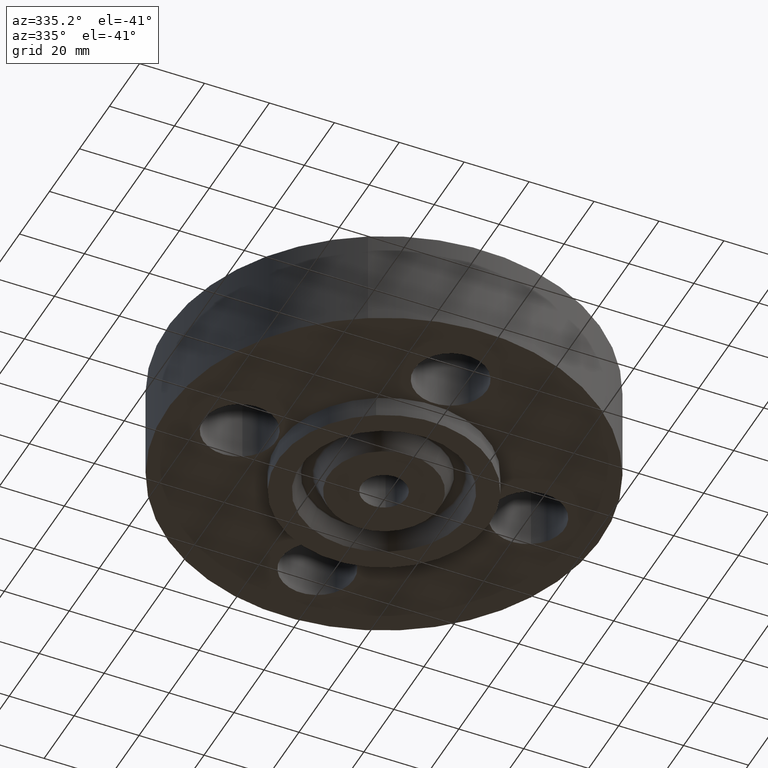
[diagram: clean part render]
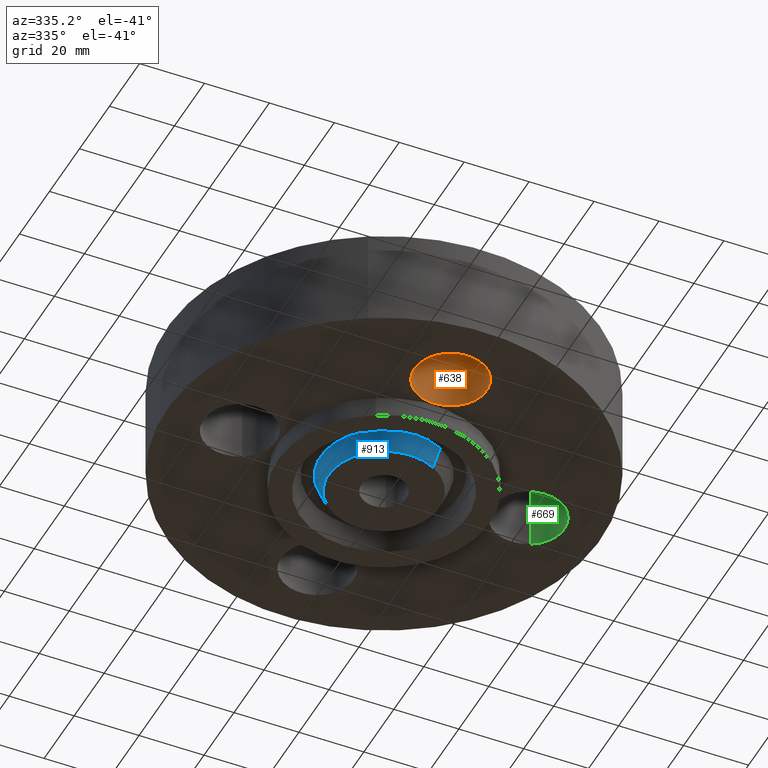
[diagram: same view with three faces highlighted in distinct colors, each labeled with its STEP entity id]
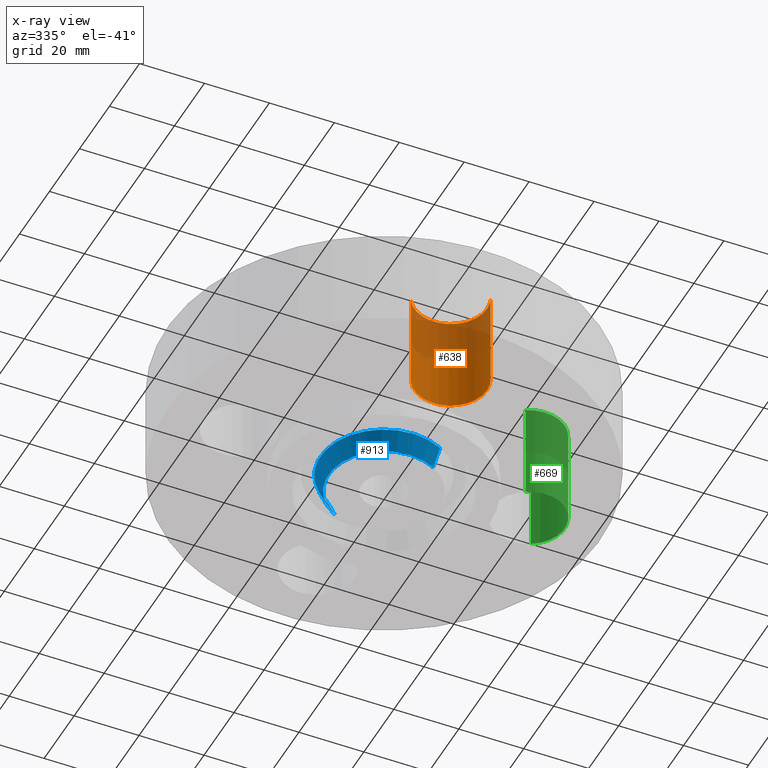
[diagram: x-ray of the same camera — body ghosted, the three highlighted faces saturated]
A machine part, auxiliary view with three faces highlighted in distinct colors.
The next image is the same camera in x-ray (body ghosted, the three faces saturated) — at least one of them is partly hidden behind the body in this view.
Their STEP definitions:

[orange] entity #638 — the highlighted cylindrical surface (partial cylindrical patch) has radius 11.176 mm, axis along (-0, 0, -1).
#527=AXIS2_PLACEMENT_3D('Circle Axis2P3D',#525,#526,$) ;
#599=AXIS2_PLACEMENT_3D('Cylinder Axis2P3D',#596,#597,#598) ;
#629=AXIS2_PLACEMENT_3D('Circle Axis2P3D',#627,#628,$) ;
#520=CARTESIAN_POINT('Vertex',(0.386136327233,-1.96094723699,0.)) ;
#522=CARTESIAN_POINT('Vertex',(-0.386136327233,-1.53905276302,0.)) ;
#525=CARTESIAN_POINT('Axis2P3D Location',(2.44773580232E-016,-1.75000000001,0.)) ;
#596=CARTESIAN_POINT('Axis2P3D Location',(2.14313189852E-016,-1.75000000001,1.18606299213)) ;
#601=CARTESIAN_POINT('Line Origine',(0.386136327233,-1.96094723699,0.595000000002)) ;
#605=CARTESIAN_POINT('Vertex',(0.386136327233,-1.96094723699,1.19)) ;
#608=CARTESIAN_POINT('Line Origine',(-0.386136327233,-1.53905276302,0.595000000002)) ;
#612=CARTESIAN_POINT('Vertex',(-0.386136327233,-1.53905276302,1.19)) ;
#627=CARTESIAN_POINT('Axis2P3D Location',(2.14313189852E-016,-1.75000000001,1.19)) ;
#526=DIRECTION('Axis2P3D Direction',(0.,0.,-0.0393700787402)) ;
#597=DIRECTION('Axis2P3D Direction',(-0.,0.,-0.0393700787402)) ;
#598=DIRECTION('Axis2P3D XDirection',(-0.0345504945626,0.0188750212049,0.)) ;
#602=DIRECTION('Vector Direction',(0.,0.,-0.0393700787402)) ;
#609=DIRECTION('Vector Direction',(0.,0.,-0.0393700787402)) ;
#628=DIRECTION('Axis2P3D Direction',(-0.,0.,-0.0393700787402)) ;
#603=VECTOR('Line Direction',#602,0.0393700787402) ;
#610=VECTOR('Line Direction',#609,0.0393700787402) ;
#633=ORIENTED_EDGE('',*,*,#614,.F.) ;
#634=ORIENTED_EDGE('',*,*,#529,.T.) ;
#635=ORIENTED_EDGE('',*,*,#607,.T.) ;
#636=ORIENTED_EDGE('',*,*,#631,.F.) ;
#638=ADVANCED_FACE('PartBody',(#637),#600,.F.) ;
#528=CIRCLE('generated circle',#527,0.440000000002) ;
#630=CIRCLE('generated circle',#629,0.440000000002) ;
#600=CYLINDRICAL_SURFACE('generated cylinder',#599,0.440000000002) ;
#529=EDGE_CURVE('',#523,#521,#528,.T.) ;
#607=EDGE_CURVE('',#521,#606,#604,.F.) ;
#614=EDGE_CURVE('',#523,#613,#611,.F.) ;
#631=EDGE_CURVE('',#613,#606,#630,.T.) ;
#632=EDGE_LOOP('',(#633,#634,#635,#636)) ;
#637=FACE_OUTER_BOUND('',#632,.T.) ;
#604=LINE('Line',#601,#603) ;
#611=LINE('Line',#608,#610) ;
#521=VERTEX_POINT('',#520) ;
#523=VERTEX_POINT('',#522) ;
#606=VERTEX_POINT('',#605) ;
#613=VERTEX_POINT('',#612) ;

[blue] entity #913 — the highlighted conical surface has half-angle 23 deg.
#721=AXIS2_PLACEMENT_3D('Circle Axis2P3D',#719,#720,$) ;
#875=AXIS2_PLACEMENT_3D('Circle Axis2P3D',#873,#874,$) ;
#888=AXIS2_PLACEMENT_3D('Cone Axis2P3D',#885,#886,#887) ;
#714=CARTESIAN_POINT('Vertex',(-0.322173961943,0.589735481593,-0.250000000001)) ;
#716=CARTESIAN_POINT('Vertex',(0.322173961943,-0.589735481593,-0.250000000001)) ;
#719=CARTESIAN_POINT('Axis2P3D Location',(1.39870617276E-016,-3.49676543189E-017,-0.250000000001)) ;
#851=CARTESIAN_POINT('Vertex',(0.369206329292,-0.675827652547,-0.0188873350169)) ;
#858=CARTESIAN_POINT('Vertex',(-0.369206329292,0.675827652547,-0.0188873350169)) ;
#873=CARTESIAN_POINT('Axis2P3D Location',(0.,0.,-0.0188873350169)) ;
#885=CARTESIAN_POINT('Axis2P3D Location',(0.,0.,-0.310000000001)) ;
#890=CARTESIAN_POINT('Line Origine',(-0.345690145618,0.63278156707,-0.134443667509)) ;
#895=CARTESIAN_POINT('Line Origine',(0.345690145618,-0.63278156707,-0.134443667509)) ;
#720=DIRECTION('Axis2P3D Direction',(0.,0.,-0.0393700787402)) ;
#874=DIRECTION('Axis2P3D Direction',(0.,0.,0.0393700787402)) ;
#886=DIRECTION('Axis2P3D Direction',(0.,0.,0.0393700787402)) ;
#887=DIRECTION('Axis2P3D XDirection',(-0.0188750212049,0.0345504945626,0.)) ;
#891=DIRECTION('Vector Direction',(-0.00737505833565,0.0134999537303,0.0362403485611)) ;
#896=DIRECTION('Vector Direction',(0.00737505833565,-0.0134999537303,0.0362403485611)) ;
#892=VECTOR('Line Direction',#891,0.0393700787402) ;
#897=VECTOR('Line Direction',#896,0.0393700787402) ;
#908=ORIENTED_EDGE('',*,*,#899,.F.) ;
#909=ORIENTED_EDGE('',*,*,#877,.F.) ;
#910=ORIENTED_EDGE('',*,*,#894,.T.) ;
#911=ORIENTED_EDGE('',*,*,#723,.F.) ;
#913=ADVANCED_FACE('PartBody',(#912),#889,.T.) ;
#722=CIRCLE('generated circle',#721,0.672000000003) ;
#876=CIRCLE('generated circle',#875,0.770101505996) ;
#889=CONICAL_SURFACE('Cone',#888,0.64653151103,0.401425727959) ;
#723=EDGE_CURVE('',#717,#715,#722,.T.) ;
#877=EDGE_CURVE('',#859,#852,#876,.T.) ;
#894=EDGE_CURVE('',#859,#715,#893,.F.) ;
#899=EDGE_CURVE('',#852,#717,#898,.F.) ;
#907=EDGE_LOOP('',(#908,#909,#910,#911)) ;
#912=FACE_OUTER_BOUND('',#907,.T.) ;
#893=LINE('Line',#890,#892) ;
#898=LINE('Line',#895,#897) ;
#715=VERTEX_POINT('',#714) ;
#717=VERTEX_POINT('',#716) ;
#852=VERTEX_POINT('',#851) ;
#859=VERTEX_POINT('',#858) ;

[green] entity #669 — the highlighted cylindrical surface (partial cylindrical patch) has radius 11.176 mm, axis along (0, -0, -1).
#500=AXIS2_PLACEMENT_3D('Circle Axis2P3D',#498,#499,$) ;
#642=AXIS2_PLACEMENT_3D('Cylinder Axis2P3D',#639,#640,#641) ;
#660=AXIS2_PLACEMENT_3D('Circle Axis2P3D',#658,#659,$) ;
#498=CARTESIAN_POINT('Axis2P3D Location',(1.75000000001,-2.79741234551E-016,0.)) ;
#502=CARTESIAN_POINT('Vertex',(1.96094723699,0.386136327233,0.)) ;
#504=CARTESIAN_POINT('Vertex',(1.53905276302,-0.386136327233,0.)) ;
#639=CARTESIAN_POINT('Axis2P3D Location',(1.75000000001,-1.72584639625E-016,1.18606299213)) ;
#644=CARTESIAN_POINT('Line Origine',(1.96094723699,0.386136327233,0.595000000002)) ;
#648=CARTESIAN_POINT('Vertex',(1.96094723699,0.386136327233,1.19)) ;
#651=CARTESIAN_POINT('Line Origine',(1.53905276302,-0.386136327233,0.595000000002)) ;
#655=CARTESIAN_POINT('Vertex',(1.53905276302,-0.386136327233,1.19)) ;
#658=CARTESIAN_POINT('Axis2P3D Location',(1.75000000001,-1.72584639625E-016,1.19)) ;
#499=DIRECTION('Axis2P3D Direction',(0.,0.,-0.0393700787402)) ;
#640=DIRECTION('Axis2P3D Direction',(0.,-0.,-0.0393700787402)) ;
#641=DIRECTION('Axis2P3D XDirection',(-0.0188750212049,-0.0345504945626,0.)) ;
#645=DIRECTION('Vector Direction',(0.,0.,-0.0393700787402)) ;
#652=DIRECTION('Vector Direction',(0.,0.,-0.0393700787402)) ;
#659=DIRECTION('Axis2P3D Direction',(0.,-0.,-0.0393700787402)) ;
#646=VECTOR('Line Direction',#645,0.0393700787402) ;
#653=VECTOR('Line Direction',#652,0.0393700787402) ;
#664=ORIENTED_EDGE('',*,*,#650,.F.) ;
#665=ORIENTED_EDGE('',*,*,#506,.T.) ;
#666=ORIENTED_EDGE('',*,*,#657,.T.) ;
#667=ORIENTED_EDGE('',*,*,#662,.F.) ;
#669=ADVANCED_FACE('PartBody',(#668),#643,.F.) ;
#501=CIRCLE('generated circle',#500,0.440000000002) ;
#661=CIRCLE('generated circle',#660,0.440000000002) ;
#643=CYLINDRICAL_SURFACE('generated cylinder',#642,0.440000000002) ;
#506=EDGE_CURVE('',#503,#505,#501,.T.) ;
#650=EDGE_CURVE('',#503,#649,#647,.F.) ;
#657=EDGE_CURVE('',#505,#656,#654,.F.) ;
#662=EDGE_CURVE('',#649,#656,#661,.T.) ;
#663=EDGE_LOOP('',(#664,#665,#666,#667)) ;
#668=FACE_OUTER_BOUND('',#663,.T.) ;
#647=LINE('Line',#644,#646) ;
#654=LINE('Line',#651,#653) ;
#503=VERTEX_POINT('',#502) ;
#505=VERTEX_POINT('',#504) ;
#649=VERTEX_POINT('',#648) ;
#656=VERTEX_POINT('',#655) ;